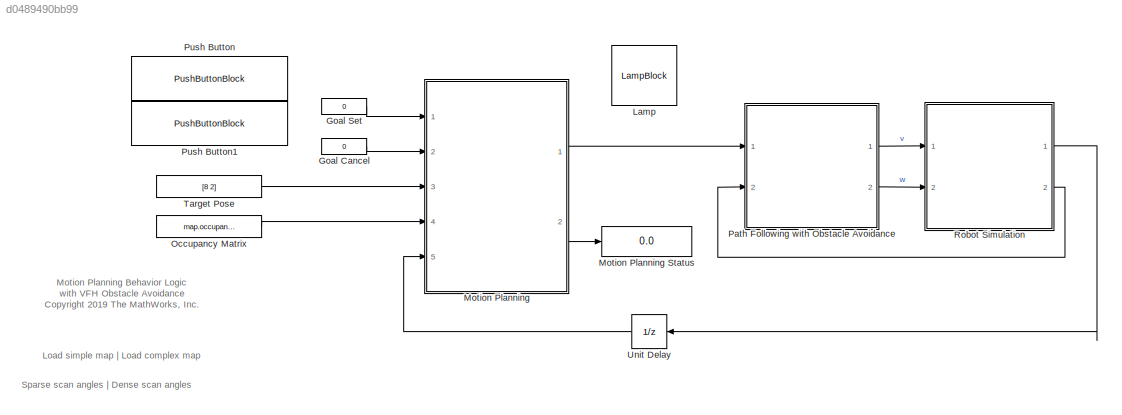
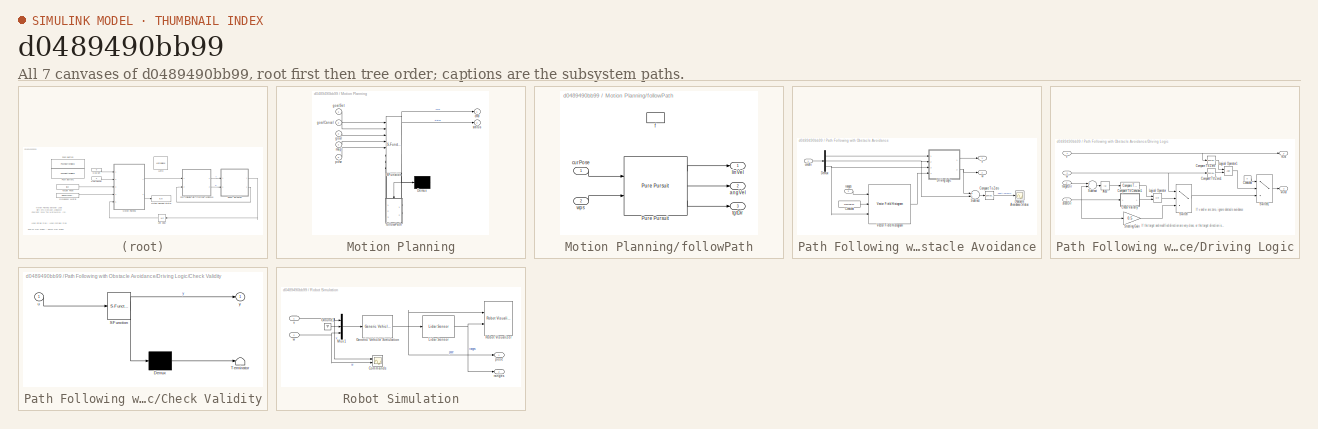
[diagram: thumbnail index - all 7 canvases of the model, root first then tree order]
MODEL slx_d0489490bb99
KIND model
CONFIG AbsTol = auto
CONFIG EnableMultiTasking = off
CONFIG FixedStep = auto
CONFIG InitFcn = close all;\nclear showPath;
CONFIG MaxStep = auto
CONFIG MinStep = auto
CONFIG PreLoadFcn = rlMobileRobotParams;
CONFIG RelTol = 1e-3
CONFIG SampleTimeConstraint = Unconstrained
CONFIG Solver = ode23t
CONFIG SolverName = ode23t
CONFIG StartTime = 0.0
CONFIG StopTime = inf
WORKSPACE source: mxarray member
WORKSPACE mapForSim: object (value not decoded)
WORKSPACE occGrid: robotics.BinaryOccupancyGrid (value not decoded)
BLOCK [Constant] Goal Cancel
  Value = 0
BLOCK [Constant] Goal Set
  Value = 0
BLOCK [LampBlock] Lamp
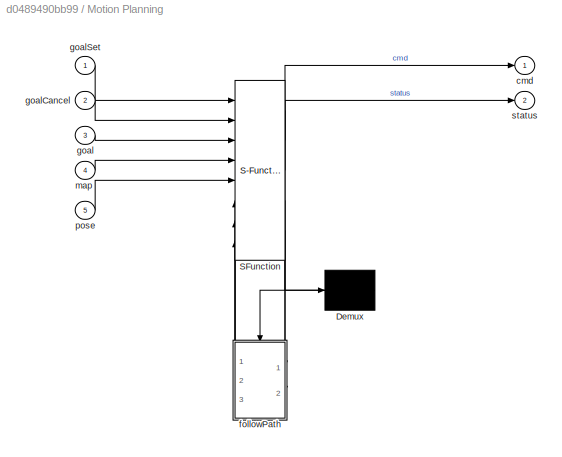
BLOCK [SubSystem] Motion Planning
  BlockKeywords = __PRM__SERIALIZED__DATA__:Stateflow Chart,Stateflow Diagram
  ErrorFcn = Stateflow.Translate.translate
  PermitHierarchicalResolution = ExplicitOnly
  Ports = [5, 2]
  RequestExecContextInheritance = off
  SFBlockType = Chart
  TreatAsAtomicUnit = on
BLOCK [Display] Motion Planning Status
  Decimation = 1
  Ports = [1]
BLOCK [Demux] Motion Planning/ Demux 
  Outputs = 1
  Ports = [1, 1]
BLOCK [S-Function] Motion Planning/ SFunction 
  EnableBusSupport = on
  FunctionName = sf_sfun
  Parameters = goalCheckDistance,prmConnectionDistance,prmNumNodes
  PortCounts = [8 5]
  Ports = [8, 5]
  SFcnIsStateOwnerBlock = off
  SFunctionDeploymentMode = off
  Tag = Stateflow S-Function 3
BLOCK [Outport] Motion Planning/cmd
  IconDisplay = Port number
BLOCK [SubSystem] Motion Planning/followPath
  Ports = [2, 3, 0, 1]
  PreDeleteFcn = Stateflow.SLINSF.SimulinkMan.removePreDeleteFcn
  RequestExecContextInheritance = off
  UndoDeleteFcn = Stateflow.SLINSF.SimulinkMan.restorePreDeleteFcn
BLOCK [Reference] Motion Planning/followPath/Pure Pursuit  REF=robotalgslib/Pure Pursuit
  Ports = [2, 3]
  SourceBlock = robotalgslib/Pure Pursuit
  SourceProductBaseCode = RO
  SourceProductName = Robotics System Toolbox
  SourceType = nav.slalgs.internal.PurePursuit
BLOCK [Outport] Motion Planning/followPath/angVel
  IconDisplay = Port number
  Port = 2
  PortDimensions = 1
BLOCK [Inport] Motion Planning/followPath/curPose
  IconDisplay = Port number
  OutDataTypeStr = double
  PortDimensions = 3
  SignalType = real
  VarSizeSig = No
BLOCK [TriggerPort] Motion Planning/followPath/f
  CopyFcn = Stateflow.SLINSF.SimulinkMan.removeBlockPreDeleteFcn
  Ports = []
  PreDeleteFcn = Stateflow.SLINSF.SimulinkMan.unsafePredeleteFcn
  StatesWhenEnabling = held
  TriggerType = function-call
  VariantControl = (inherit)
BLOCK [Outport] Motion Planning/followPath/linVel
  IconDisplay = Port number
  PortDimensions = 1
BLOCK [Outport] Motion Planning/followPath/tgtDir
  IconDisplay = Port number
  Port = 3
  PortDimensions = 1
BLOCK [Inport] Motion Planning/followPath/wps
  IconDisplay = Port number
  OutDataTypeStr = double
  Port = 2
  PortDimensions = [prmMaxWaypoints 2]
  SignalType = real
  VarSizeSig = Yes
BLOCK [Inport] Motion Planning/goal
  IconDisplay = Port number
  Port = 3
BLOCK [Inport] Motion Planning/goalCancel
  IconDisplay = Port number
  Port = 2
BLOCK [Inport] Motion Planning/goalSet
  IconDisplay = Port number
BLOCK [Inport] Motion Planning/map
  IconDisplay = Port number
  Port = 4
BLOCK [Inport] Motion Planning/pose
  IconDisplay = Port number
  Port = 5
BLOCK [Outport] Motion Planning/status
  IconDisplay = Port number
  Port = 2
BLOCK [Constant] Occupancy Matrix
  Value = map.occupancyMatrix
BLOCK [SubSystem] Path Following with Obstacle Avoidance
  Ports = [2, 2]
  RequestExecContextInheritance = off
BLOCK [Reference] Path Following with Obstacle Avoidance/Compare To Zero  REF=simulink/Logic and Bit
Operations/Compare
To Zero
  Ports = [1, 1]
  SourceBlock = simulink/Logic and Bit\nOperations/Compare\nTo Zero
  SourceProductBaseCode = SL
  SourceProductName = Simulink
  SourceType = Compare To Zero
BLOCK [Constant] Path Following with Obstacle Avoidance/Constant
  Value = scanAngles
BLOCK [Demux] Path Following with Obstacle Avoidance/Demux
  DisplayOption = bar
  Outputs = 3
  Ports = [1, 3]
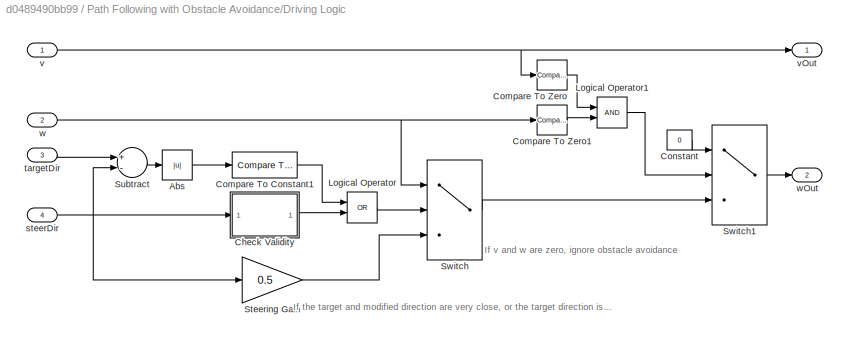
BLOCK [SubSystem] Path Following with Obstacle Avoidance/Driving Logic
  Ports = [4, 2]
  RequestExecContextInheritance = off
BLOCK [Abs] Path Following with Obstacle Avoidance/Driving Logic/Abs
  SaturateOnIntegerOverflow = off
BLOCK [SubSystem] Path Following with Obstacle Avoidance/Driving Logic/Check Validity
  ErrorFcn = Stateflow.Translate.translate
  PermitHierarchicalResolution = ExplicitOnly
  Ports = [1, 1]
  RequestExecContextInheritance = off
  SFBlockType = MATLAB Function
  TreatAsAtomicUnit = on
BLOCK [Demux] Path Following with Obstacle Avoidance/Driving Logic/Check Validity/ Demux 
  Outputs = 1
  Ports = [1, 1]
BLOCK [S-Function] Path Following with Obstacle Avoidance/Driving Logic/Check Validity/ SFunction 
  EnableBusSupport = on
  FunctionName = sf_sfun
  PortCounts = [1 2]
  Ports = [1, 2]
  SFcnIsStateOwnerBlock = off
  SFunctionDeploymentMode = off
  Tag = Stateflow S-Function 2
BLOCK [Terminator] Path Following with Obstacle Avoidance/Driving Logic/Check Validity/ Terminator 
BLOCK [Inport] Path Following with Obstacle Avoidance/Driving Logic/Check Validity/u
  IconDisplay = Port number
BLOCK [Outport] Path Following with Obstacle Avoidance/Driving Logic/Check Validity/y
  IconDisplay = Port number
BLOCK [Reference] Path Following with Obstacle Avoidance/Driving Logic/Compare To Constant1  REF=simulink/Logic and Bit
Operations/Compare
To Constant
  Ports = [1, 1]
  SourceBlock = simulink/Logic and Bit\nOperations/Compare\nTo Constant
  SourceProductBaseCode = SL
  SourceProductName = Simulink
  SourceType = Compare To Constant
BLOCK [Reference] Path Following with Obstacle Avoidance/Driving Logic/Compare To Zero  REF=simulink/Logic and Bit
Operations/Compare
To Zero
  Ports = [1, 1]
  SourceBlock = simulink/Logic and Bit\nOperations/Compare\nTo Zero
  SourceProductBaseCode = SL
  SourceProductName = Simulink
  SourceType = Compare To Zero
BLOCK [Reference] Path Following with Obstacle Avoidance/Driving Logic/Compare To Zero1  REF=simulink/Logic and Bit
Operations/Compare
To Zero
  Ports = [1, 1]
  SourceBlock = simulink/Logic and Bit\nOperations/Compare\nTo Zero
  SourceProductBaseCode = SL
  SourceProductName = Simulink
  SourceType = Compare To Zero
BLOCK [Constant] Path Following with Obstacle Avoidance/Driving Logic/Constant
  Value = 0
BLOCK [Logic] Path Following with Obstacle Avoidance/Driving Logic/Logical Operator
  AllPortsSameDT = off
  Operator = OR
  OutDataTypeStr = boolean
  Ports = [2, 1]
BLOCK [Logic] Path Following with Obstacle Avoidance/Driving Logic/Logical Operator1
  AllPortsSameDT = off
  OutDataTypeStr = boolean
  Ports = [2, 1]
BLOCK [Gain] Path Following with Obstacle Avoidance/Driving Logic/Steering Gain
  Gain = 0.5
  OutDataTypeStr = Inherit: Inherit via internal rule
  ParamDataTypeStr = Inherit: Inherit via internal rule
  SaturateOnIntegerOverflow = off
BLOCK [Sum] Path Following with Obstacle Avoidance/Driving Logic/Subtract
  InputSameDT = off
  Inputs = +-
  OutDataTypeStr = Inherit: Inherit via internal rule
  Ports = [2, 1]
  SaturateOnIntegerOverflow = off
BLOCK [Switch] Path Following with Obstacle Avoidance/Driving Logic/Switch
  Criteria = u2 ~= 0
  InputSameDT = off
  SaturateOnIntegerOverflow = off
BLOCK [Switch] Path Following with Obstacle Avoidance/Driving Logic/Switch1
  Criteria = u2 ~= 0
  InputSameDT = off
  SaturateOnIntegerOverflow = off
BLOCK [Inport] Path Following with Obstacle Avoidance/Driving Logic/steerDir
  IconDisplay = Port number
  Port = 4
BLOCK [Inport] Path Following with Obstacle Avoidance/Driving Logic/targetDir
  IconDisplay = Port number
  Port = 3
BLOCK [Inport] Path Following with Obstacle Avoidance/Driving Logic/v
  IconDisplay = Port number
BLOCK [Outport] Path Following with Obstacle Avoidance/Driving Logic/vOut
  IconDisplay = Port number
  VectorParamsAs1DForOutWhenUnconnected = off
BLOCK [Inport] Path Following with Obstacle Avoidance/Driving Logic/w
  IconDisplay = Port number
  Port = 2
BLOCK [Outport] Path Following with Obstacle Avoidance/Driving Logic/wOut
  IconDisplay = Port number
  Port = 2
  VectorParamsAs1DForOutWhenUnconnected = off
BLOCK [Scope] Path Following with Obstacle Avoidance/Obstacle Avoidance Status
  Floating = off
  NumInputPorts = 1
  Ports = [1]
  ScopeSpecificationString = Simulink.scopes.TimeScopeBlockCfg('CurrentConfiguration', extmgr.ConfigurationSet(extmgr.Configuration('Core','General UI',true),extmgr.Configuration('Core','Source UI',true),extmgr.Configuration('Sources','WiredSimulink',true,'DataLoggingVariableName','ScopeData1'),extmgr.Configuration('Visuals','Time Domain',true,'SerializedDisplays',{struct('MinYLimReal','-0.2','MaxYLimReal','1.2','YLabelReal',...<+1384ch>
BLOCK [Sum] Path Following with Obstacle Avoidance/Subtract
  InputSameDT = off
  Inputs = +-
  OutDataTypeStr = Inherit: Inherit via internal rule
  Ports = [2, 1]
  SaturateOnIntegerOverflow = off
BLOCK [Reference] Path Following with Obstacle Avoidance/Vector Field Histogram  REF=robotalgslib/Vector Field Histogram
  Ports = [3, 1]
  SourceBlock = robotalgslib/Vector Field Histogram
  SourceProductBaseCode = RO
  SourceProductName = Robotics System Toolbox
  SourceType = nav.slalgs.internal.VectorFieldHistogram
BLOCK [Inport] Path Following with Obstacle Avoidance/cmdIn
  IconDisplay = Port number
BLOCK [Inport] Path Following with Obstacle Avoidance/ranges
  IconDisplay = Port number
  Port = 2
BLOCK [Outport] Path Following with Obstacle Avoidance/v
  IconDisplay = Port number
  VectorParamsAs1DForOutWhenUnconnected = off
BLOCK [Outport] Path Following with Obstacle Avoidance/w
  IconDisplay = Port number
  Port = 2
  VectorParamsAs1DForOutWhenUnconnected = off
BLOCK [PushButtonBlock] Push Button
  ButtonText = Set Nav Goal
BLOCK [PushButtonBlock] Push Button1
  ButtonText = Cancel Nav Goal
BLOCK [SubSystem] Robot Simulation
  Ports = [2, 2]
  RequestExecContextInheritance = off
BLOCK [Scope] Robot Simulation/Commands
  Floating = off
  NumInputPorts = 2
  Ports = [2]
  ScopeSpecificationString = Simulink.scopes.TimeScopeBlockCfg('CurrentConfiguration', extmgr.ConfigurationSet(extmgr.Configuration('Core','General UI',true),extmgr.Configuration('Core','Source UI',true),extmgr.Configuration('Sources','WiredSimulink',true),extmgr.Configuration('Visuals','Time Domain',true,'SerializedDisplays',{struct('MinYLimReal','-1.00000','MaxYLimReal','1.00000','YLabelReal','','MinYLimMag','0.00000','MaxY...<+1991ch>
BLOCK [Reference] Robot Simulation/Generic Vehicle Simulation  REF=mobileRoboticsLib/Utilities/Generic Vehicle Simulation
  Ports = [1, 1]
  SourceBlock = mobileRoboticsLib/Utilities/Generic Vehicle Simulation
  SourceProductName = Mobile Robotics Simulation Library
  SourceType = Generic Vehicle Simulation
BLOCK [Ground] Robot Simulation/Ground1
BLOCK [Reference] Robot Simulation/Lidar Sensor  REF=mobileRoboticsLib/Environments/Lidar Sensor
  Ports = [1, 1]
  SourceBlock = mobileRoboticsLib/Environments/Lidar Sensor
  SourceProductName = Ground Vehicles Library
  SourceType = LidarSensor
BLOCK [Mux] Robot Simulation/Mux1
  DisplayOption = bar
  Inputs = 3
  Ports = [3, 1]
BLOCK [Reference] Robot Simulation/Robot Visualizer  REF=mobileRoboticsLib/Environments/Robot Visualizer
  Ports = [2]
  Priority = 99
  SourceBlock = mobileRoboticsLib/Environments/Robot Visualizer
  SourceProductName = Ground Vehicles Library
  SourceType = Visualizer2D
BLOCK [Outport] Robot Simulation/pose
  IconDisplay = Port number
  VectorParamsAs1DForOutWhenUnconnected = off
BLOCK [Outport] Robot Simulation/ranges
  IconDisplay = Port number
  Port = 2
  VectorParamsAs1DForOutWhenUnconnected = off
BLOCK [Inport] Robot Simulation/v
  IconDisplay = Port number
BLOCK [Inport] Robot Simulation/w
  IconDisplay = Port number
  Port = 2
BLOCK [Constant] Target Pose
  Value = [8 2]
BLOCK [UnitDelay] Unit Delay
  HasFrameUpgradeWarning = on
  InitialCondition = [initX;initY;initTheta]
  SampleTime = -1
ANNOTATION (root): Load simple map | Load complex map
ANNOTATION (root): Sparse scan angles | Dense scan angles
ANNOTATION (root): Motion Planning Behavior Logic with VFH Obstacle Avoidance <copyright redacted>
ANNOTATION Path Following with Obstacle Avoidance/Driving Logic: If the target and modified direction are very close, or the target direction is invalid, keep the target direction
ANNOTATION Path Following with Obstacle Avoidance/Driving Logic: If v and w are zero, ignore obstacle avoidance
LINE Goal Cancel:1 -> Motion Planning:2
LINE Goal Set:1 -> Motion Planning:1
LINE Motion Planning:1 -> Path Following with Obstacle Avoidance:1
LINE Motion Planning:2 -> Motion Planning Status:1
LINE Occupancy Matrix:1 -> Motion Planning:4
LINE Path Following with Obstacle Avoidance/Compare To Zero:1 -> Path Following with Obstacle Avoidance/Obstacle Avoidance Status:1
LINE Path Following with Obstacle Avoidance/Constant:1 -> Path Following with Obstacle Avoidance/Vector Field Histogram:2
LINE Path Following with Obstacle Avoidance/Demux:1 -> Path Following with Obstacle Avoidance/Driving Logic:1
NET Path Following with Obstacle Avoidance/Demux:2 -> Path Following with Obstacle Avoidance/Driving Logic:2, Path Following with Obstacle Avoidance/Subtract:2
NET Path Following with Obstacle Avoidance/Demux:3 -> Path Following with Obstacle Avoidance/Driving Logic:3, Path Following with Obstacle Avoidance/Vector Field Histogram:3
LINE Path Following with Obstacle Avoidance/Driving Logic/Abs:1 -> Path Following with Obstacle Avoidance/Driving Logic/Compare To Constant1:1
LINE Path Following with Obstacle Avoidance/Driving Logic/Check Validity:1 -> Path Following with Obstacle Avoidance/Driving Logic/Logical Operator:2
LINE Path Following with Obstacle Avoidance/Driving Logic/Compare To Constant1:1 -> Path Following with Obstacle Avoidance/Driving Logic/Logical Operator:1
LINE Path Following with Obstacle Avoidance/Driving Logic/Compare To Zero1:1 -> Path Following with Obstacle Avoidance/Driving Logic/Logical Operator1:2
LINE Path Following with Obstacle Avoidance/Driving Logic/Compare To Zero:1 -> Path Following with Obstacle Avoidance/Driving Logic/Logical Operator1:1
LINE Path Following with Obstacle Avoidance/Driving Logic/Constant:1 -> Path Following with Obstacle Avoidance/Driving Logic/Switch1:1
LINE Path Following with Obstacle Avoidance/Driving Logic/Logical Operator1:1 -> Path Following with Obstacle Avoidance/Driving Logic/Switch1:2
LINE Path Following with Obstacle Avoidance/Driving Logic/Logical Operator:1 -> Path Following with Obstacle Avoidance/Driving Logic/Switch:2
LINE Path Following with Obstacle Avoidance/Driving Logic/Steering Gain:1 -> Path Following with Obstacle Avoidance/Driving Logic/Switch:3
LINE Path Following with Obstacle Avoidance/Driving Logic/Subtract:1 -> Path Following with Obstacle Avoidance/Driving Logic/Abs:1
LINE Path Following with Obstacle Avoidance/Driving Logic/Switch1:1 -> Path Following with Obstacle Avoidance/Driving Logic/wOut:1
LINE Path Following with Obstacle Avoidance/Driving Logic/Switch:1 -> Path Following with Obstacle Avoidance/Driving Logic/Switch1:3
NET Path Following with Obstacle Avoidance/Driving Logic/steerDir:1 -> Path Following with Obstacle Avoidance/Driving Logic/Check Validity:1, Path Following with Obstacle Avoidance/Driving Logic/Steering Gain:1, Path Following with Obstacle Avoidance/Driving Logic/Subtract:2
LINE Path Following with Obstacle Avoidance/Driving Logic/targetDir:1 -> Path Following with Obstacle Avoidance/Driving Logic/Subtract:1
NET Path Following with Obstacle Avoidance/Driving Logic/v:1 -> Path Following with Obstacle Avoidance/Driving Logic/Compare To Zero:1, Path Following with Obstacle Avoidance/Driving Logic/vOut:1
NET Path Following with Obstacle Avoidance/Driving Logic/w:1 -> Path Following with Obstacle Avoidance/Driving Logic/Compare To Zero1:1, Path Following with Obstacle Avoidance/Driving Logic/Switch:1
LINE Path Following with Obstacle Avoidance/Driving Logic:1 -> Path Following with Obstacle Avoidance/v:1
NET Path Following with Obstacle Avoidance/Driving Logic:2 -> Path Following with Obstacle Avoidance/Subtract:1, Path Following with Obstacle Avoidance/w:1
LINE Path Following with Obstacle Avoidance/Subtract:1 -> Path Following with Obstacle Avoidance/Compare To Zero:1
LINE Path Following with Obstacle Avoidance/Vector Field Histogram:1 -> Path Following with Obstacle Avoidance/Driving Logic:4
LINE Path Following with Obstacle Avoidance/cmdIn:1 -> Path Following with Obstacle Avoidance/Demux:1
LINE Path Following with Obstacle Avoidance/ranges:1 -> Path Following with Obstacle Avoidance/Vector Field Histogram:1
LINE Path Following with Obstacle Avoidance:1 -> Robot Simulation:1
LINE Path Following with Obstacle Avoidance:2 -> Robot Simulation:2
NET Robot Simulation/Generic Vehicle Simulation:1 -> Robot Simulation/Lidar Sensor:1, Robot Simulation/Robot Visualizer:1, Robot Simulation/pose:1
LINE Robot Simulation/Ground1:1 -> Robot Simulation/Mux1:2
NET Robot Simulation/Lidar Sensor:1 -> Robot Simulation/Robot Visualizer:2, Robot Simulation/ranges:1
LINE Robot Simulation/Mux1:1 -> Robot Simulation/Generic Vehicle Simulation:1
NET Robot Simulation/v:1 -> Robot Simulation/Commands:1, Robot Simulation/Mux1:1
NET Robot Simulation/w:1 -> Robot Simulation/Commands:2, Robot Simulation/Mux1:3
LINE Robot Simulation:1 -> Unit Delay:1
LINE Robot Simulation:2 -> Path Following with Obstacle Avoidance:2
LINE Target Pose:1 -> Motion Planning:3
LINE Unit Delay:1 -> Motion Planning:5
note: NET lines group one-source signal fan-out (src -> all destinations, sorted); 1:1 wires keep LINE
CHART Path Following with 
Obstacle Avoidance/Driving Logic/Check Validity states=1 transitions=1
  STATE_LABEL 'eML_blk_kernel()'
  STATE_LABEL 'SCRIPT:\nfunction y = checkValid(u)\n\ny = isnan(u);\n'
CHART Motion Planning states=5 transitions=12
  STATE_LABEL 'ExecuteMotionPlan\n'
  STATE_LABEL '{pathFound = false;}'
  STATE_LABEL '[pathFound]'
  STATE_LABEL '% Plan a path\n{\n[waypoints,pathFound] = ... \ncomputePath(goal,pose,map);\n}'
  STATE_LABEL '% If a path exists, follow it\n{\n[v,w,d] = followPath(pose,waypoints);\ncmd = [v;w;d];\nstatus = MotionPlanning.FOLLOWING;\n}'
  STATE_LABEL 'Standby\nen:\ncmd = [0;0;0];'
  STATE_LABEL 'done = isGoalReached'
  STATE_LABEL '{\ndist = sqrt((goal(1)-pose(1))^2 + (goal(2)-pose(2))^2);\ndone = (dist <= goalCheckDistance);\n}'
  STATE_LABEL '[wps,found] = computePath(tgtPose,curPose,occMat)'
  STATE_LABEL "SCRIPT:\nfunction [wps,found] = computePath(tgtPose,curPose,occMat)\n\n% Initialize path planner on initialization\ncoder.extrinsic('showPath')\npersistent planner firstTime\nif isempty(planner)\n    occMap = occupancyMap(occMat,2);\n    planner = mobileRobotPRM(occMap);\n    % inflate(occMap,0.2); % No inflation in this example, obstacle avoidance handles it\n    planner.ConnectionDistance = prmConnectionD...<+998ch>"
  STATE_LABEL '[linVel,angVel,tgtDir]  = followPath(curPose,wps)'
